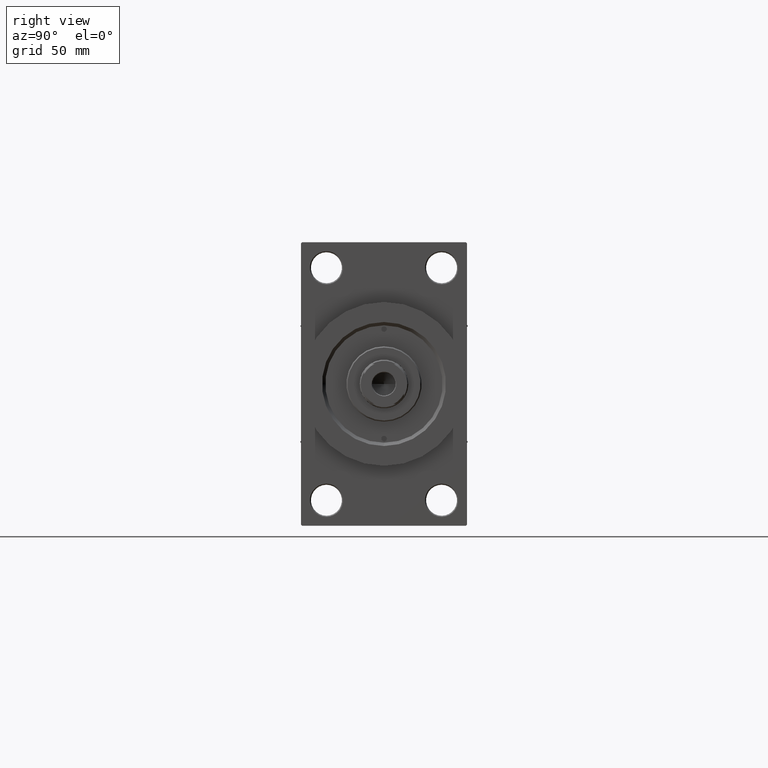
[diagram: clean part render]
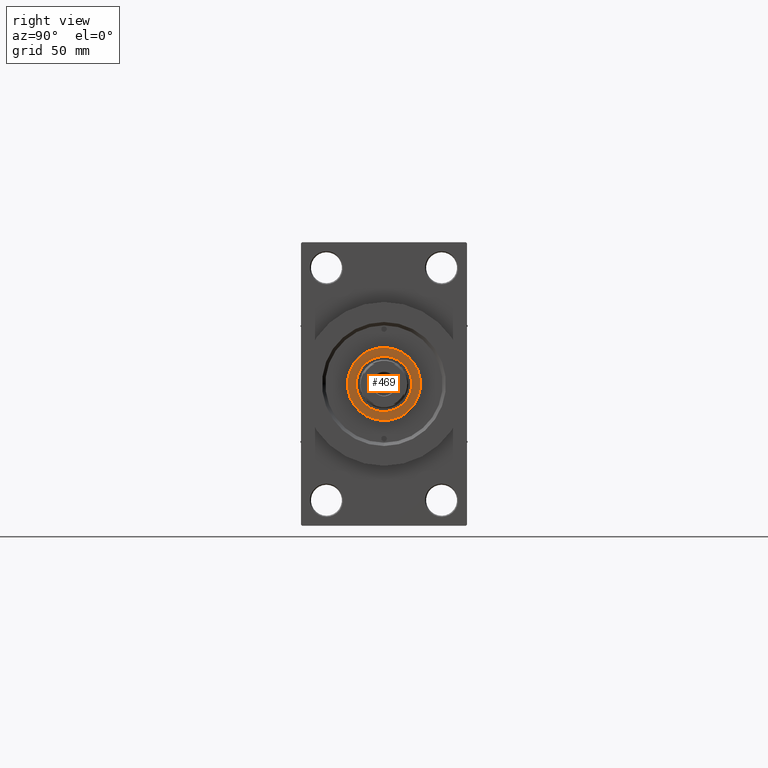
[diagram: same view with one face highlighted and labeled with its STEP entity id]
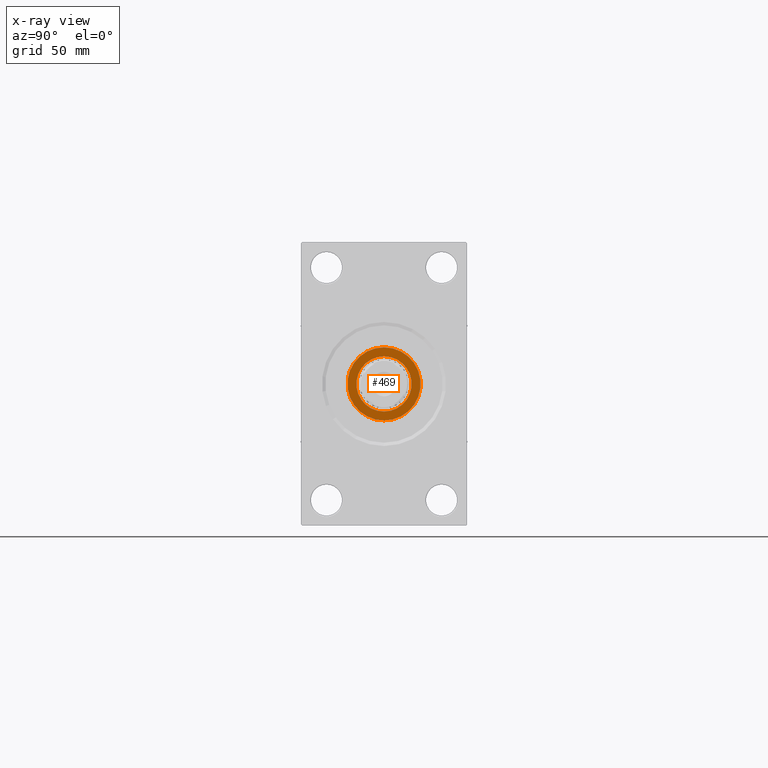
[diagram: x-ray of the same camera — body ghosted, the highlighted face saturated]
A machine part, right view. The second image highlights one B-rep face of the part: STEP entity #469.
The next image is the same camera in x-ray: the body ghosted, the highlighted face saturated — about 0% of this face is hidden behind the body in this view.
In plain terms, the highlighted planar face has unit normal (1, -0, -0).
Its self-contained STEP definition (entity closure, byte-faithful):
#469 = ADVANCED_FACE ( 'NONE', ( #19631, #5507 ), #27301, .T. ) ;
#1500 = EDGE_CURVE ( 'NONE', #30231, #14016, #2042, .T. ) ;
#1885 = CARTESIAN_POINT ( 'NONE',  ( 0.000000000000000000, 0.000000000000000000, 52.25999999999999801 ) ) ;
#2042 = CIRCLE ( 'NONE', #18888, 16.50000000000000000 ) ;
#2449 = DIRECTION ( 'NONE',  ( 1.000000000000000000, 0.000000000000000000, 0.000000000000000000 ) ) ;
#5507 = FACE_OUTER_BOUND ( 'NONE', #38741, .T. ) ;
#6303 = CIRCLE ( 'NONE', #43046, 12.50000000000000000 ) ;
#7122 = AXIS2_PLACEMENT_3D ( 'NONE', #19914, #25402, #35965 ) ;
#7700 = ORIENTED_EDGE ( 'NONE', *, *, #26155, .F. ) ;
#10572 = ORIENTED_EDGE ( 'NONE', *, *, #1500, .T. ) ;
#14016 = VERTEX_POINT ( 'NONE', #23255 ) ;
#17291 = AXIS2_PLACEMENT_3D ( 'NONE', #1885, #26834, #34266 ) ;
#17853 = CIRCLE ( 'NONE', #7122, 16.50000000000000000 ) ;
#18888 = AXIS2_PLACEMENT_3D ( 'NONE', #20650, #35298, #2449 ) ;
#18981 = AXIS2_PLACEMENT_3D ( 'NONE', #28143, #35818, #43482 ) ;
#19631 = FACE_BOUND ( 'NONE', #30690, .T. ) ;
#19914 = CARTESIAN_POINT ( 'NONE',  ( 0.000000000000000000, 0.000000000000000000, 52.25999999999999801 ) ) ;
#20650 = CARTESIAN_POINT ( 'NONE',  ( 0.000000000000000000, 0.000000000000000000, 52.25999999999999801 ) ) ;
#22003 = DIRECTION ( 'NONE',  ( 1.000000000000000000, 0.000000000000000000, 0.000000000000000000 ) ) ;
#23255 = CARTESIAN_POINT ( 'NONE',  ( 16.50000000000000000, 2.051283388571816887E-15, 52.25999999999999801 ) ) ;
#25402 = DIRECTION ( 'NONE',  ( 0.000000000000000000, 0.000000000000000000, 1.000000000000000000 ) ) ;
#26155 = EDGE_CURVE ( 'NONE', #44897, #37930, #33532, .T. ) ;
#26834 = DIRECTION ( 'NONE',  ( 0.000000000000000000, 0.000000000000000000, 1.000000000000000000 ) ) ;
#27301 = PLANE ( 'NONE',  #17291 ) ;
#28143 = CARTESIAN_POINT ( 'NONE',  ( 0.000000000000000000, 0.000000000000000000, 52.25999999999999801 ) ) ;
#28728 = DIRECTION ( 'NONE',  ( 0.000000000000000000, 0.000000000000000000, 1.000000000000000000 ) ) ;
#29215 = CARTESIAN_POINT ( 'NONE',  ( 0.000000000000000000, 0.000000000000000000, 52.25999999999999801 ) ) ;
#30231 = VERTEX_POINT ( 'NONE', #35966 ) ;
#30461 = ORIENTED_EDGE ( 'NONE', *, *, #39580, .F. ) ;
#30690 = EDGE_LOOP ( 'NONE', ( #7700, #30461 ) ) ;
#33532 = CIRCLE ( 'NONE', #18981, 12.50000000000000000 ) ;
#33673 = CARTESIAN_POINT ( 'NONE',  ( -12.50000000000000000, 1.530808498934191521E-15, 52.25999999999999801 ) ) ;
#34266 = DIRECTION ( 'NONE',  ( 1.000000000000000000, 0.000000000000000000, -0.000000000000000000 ) ) ;
#35298 = DIRECTION ( 'NONE',  ( 0.000000000000000000, 0.000000000000000000, 1.000000000000000000 ) ) ;
#35818 = DIRECTION ( 'NONE',  ( 0.000000000000000000, 0.000000000000000000, 1.000000000000000000 ) ) ;
#35965 = DIRECTION ( 'NONE',  ( 1.000000000000000000, 0.000000000000000000, 0.000000000000000000 ) ) ;
#35966 = CARTESIAN_POINT ( 'NONE',  ( -16.50000000000000000, 0.000000000000000000, 52.25999999999999801 ) ) ;
#37930 = VERTEX_POINT ( 'NONE', #33673 ) ;
#38314 = ORIENTED_EDGE ( 'NONE', *, *, #41010, .T. ) ;
#38741 = EDGE_LOOP ( 'NONE', ( #10572, #38314 ) ) ;
#39580 = EDGE_CURVE ( 'NONE', #37930, #44897, #6303, .T. ) ;
#41010 = EDGE_CURVE ( 'NONE', #14016, #30231, #17853, .T. ) ;
#43046 = AXIS2_PLACEMENT_3D ( 'NONE', #29215, #28728, #22003 ) ;
#43482 = DIRECTION ( 'NONE',  ( 1.000000000000000000, 0.000000000000000000, 0.000000000000000000 ) ) ;
#44897 = VERTEX_POINT ( 'NONE', #46853 ) ;
#46853 = CARTESIAN_POINT ( 'NONE',  ( 12.50000000000000000, 0.000000000000000000, 52.25999999999999801 ) ) ;